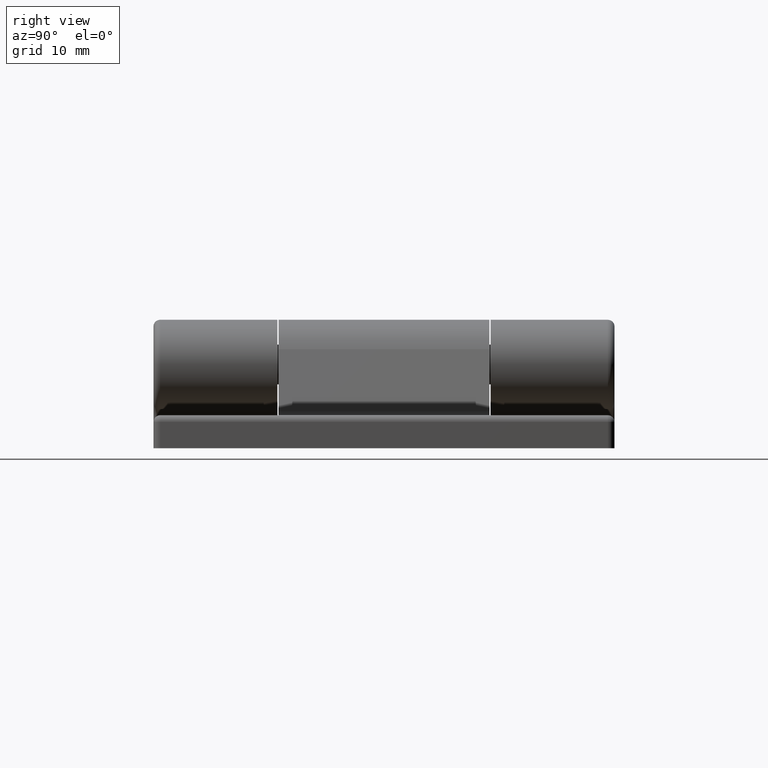
[diagram: clean part render]
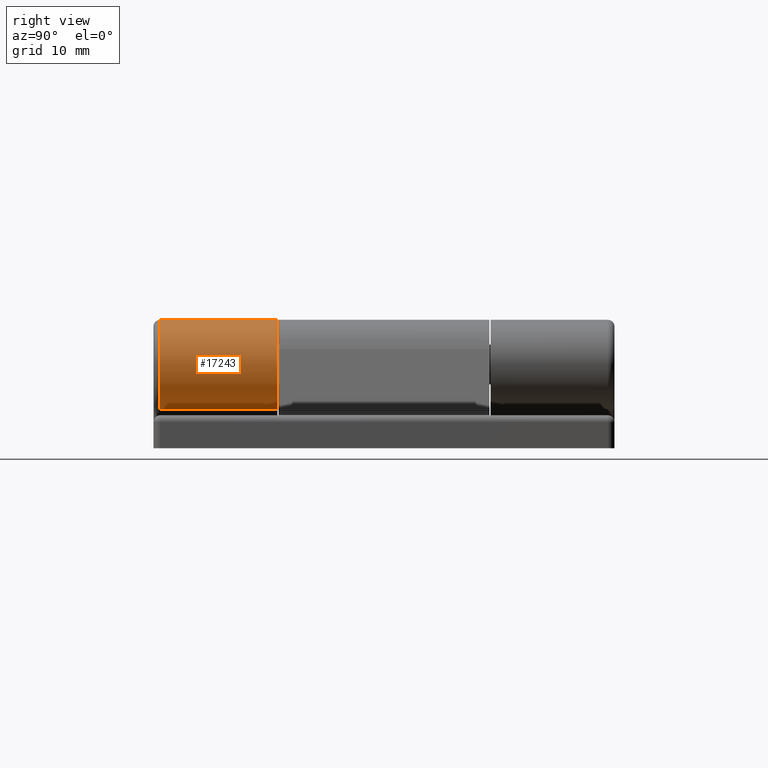
[diagram: same view with one face highlighted and labeled with its STEP entity id]
A machine part, right view. The second image highlights one B-rep face of the part: STEP entity #17243.
In plain terms, the highlighted cylindrical surface (partial cylindrical patch) has radius 6.8 mm, axis along (-0, -1, -0).
Its self-contained STEP definition (entity closure, byte-faithful):
#843 = CARTESIAN_POINT ( 'NONE',  ( 2.385244779468109755E-15, 35.00000000000000000, 5.900000000000002132 ) ) ;
#1227 = DIRECTION ( 'NONE',  ( -0.000000000000000000, -1.000000000000000000, -0.000000000000000000 ) ) ;
#2635 = EDGE_CURVE ( 'NONE', #7386, #29190, #22658, .T. ) ;
#2935 = CARTESIAN_POINT ( 'NONE',  ( 2.385244779468109755E-15, 35.00000000000000000, 12.69999999999999929 ) ) ;
#3719 = EDGE_CURVE ( 'NONE', #7386, #15488, #10869, .T. ) ;
#5928 = DIRECTION ( 'NONE',  ( 0.000000000000000000, 0.000000000000000000, 1.000000000000000000 ) ) ;
#6288 = DIRECTION ( 'NONE',  ( 0.000000000000000000, 1.000000000000000000, 0.000000000000000000 ) ) ;
#6844 = CARTESIAN_POINT ( 'NONE',  ( 2.385244779468109755E-15, -34.00000000000000000, 5.900000000000002132 ) ) ;
#7386 = VERTEX_POINT ( 'NONE', #8762 ) ;
#8109 = FACE_OUTER_BOUND ( 'NONE', #10786, .T. ) ;
#8762 = CARTESIAN_POINT ( 'NONE',  ( -6.389909821344179619, -16.19999999999999929, 15.02573697461452618 ) ) ;
#9108 = EDGE_CURVE ( 'NONE', #15488, #21674, #27698, .T. ) ;
#10109 = ORIENTED_EDGE ( 'NONE', *, *, #2635, .F. ) ;
#10674 = CARTESIAN_POINT ( 'NONE',  ( -6.389909821344177843, -34.00000000000000000, 15.02573697461452795 ) ) ;
#10786 = EDGE_LOOP ( 'NONE', ( #24976, #21532, #22698, #10109 ) ) ;
#10869 = LINE ( 'NONE', #17197, #11925 ) ;
#11395 = AXIS2_PLACEMENT_3D ( 'NONE', #19454, #12613, #5928 ) ;
#11925 = VECTOR ( 'NONE', #15024, 1000.000000000000000 ) ;
#12613 = DIRECTION ( 'NONE',  ( 0.000000000000000000, 1.000000000000000000, 0.000000000000000000 ) ) ;
#14765 = DIRECTION ( 'NONE',  ( -0.000000000000000000, -1.000000000000000000, -0.000000000000000000 ) ) ;
#14858 = DIRECTION ( 'NONE',  ( 0.000000000000000000, 0.000000000000000000, -1.000000000000000000 ) ) ;
#15024 = DIRECTION ( 'NONE',  ( -0.000000000000000000, -1.000000000000000000, -0.000000000000000000 ) ) ;
#15488 = VERTEX_POINT ( 'NONE', #10674 ) ;
#15930 = CYLINDRICAL_SURFACE ( 'NONE', #18986, 6.799999999999997158 ) ;
#17197 = CARTESIAN_POINT ( 'NONE',  ( -6.389909821344177843, 35.00000000000000000, 15.02573697461452795 ) ) ;
#17243 = ADVANCED_FACE ( 'NONE', ( #8109 ), #15930, .T. ) ;
#18292 = VECTOR ( 'NONE', #14765, 1000.000000000000000 ) ;
#18986 = AXIS2_PLACEMENT_3D ( 'NONE', #2935, #1227, #14858 ) ;
#19454 = CARTESIAN_POINT ( 'NONE',  ( 2.385244779468109755E-15, -16.19999999999999929, 12.69999999999999929 ) ) ;
#21155 = LINE ( 'NONE', #843, #18292 ) ;
#21376 = AXIS2_PLACEMENT_3D ( 'NONE', #24235, #6288, #22232 ) ;
#21532 = ORIENTED_EDGE ( 'NONE', *, *, #9108, .T. ) ;
#21674 = VERTEX_POINT ( 'NONE', #6844 ) ;
#22232 = DIRECTION ( 'NONE',  ( 0.000000000000000000, 0.000000000000000000, 1.000000000000000000 ) ) ;
#22658 = CIRCLE ( 'NONE', #11395, 6.799999999999997158 ) ;
#22698 = ORIENTED_EDGE ( 'NONE', *, *, #26235, .F. ) ;
#24235 = CARTESIAN_POINT ( 'NONE',  ( 2.385244779468109755E-15, -34.00000000000000000, 12.69999999999999929 ) ) ;
#24356 = CARTESIAN_POINT ( 'NONE',  ( 2.385244779468109755E-15, -16.19999999999999929, 5.900000000000002132 ) ) ;
#24976 = ORIENTED_EDGE ( 'NONE', *, *, #3719, .T. ) ;
#26235 = EDGE_CURVE ( 'NONE', #29190, #21674, #21155, .T. ) ;
#27698 = CIRCLE ( 'NONE', #21376, 6.799999999999997158 ) ;
#29190 = VERTEX_POINT ( 'NONE', #24356 ) ;